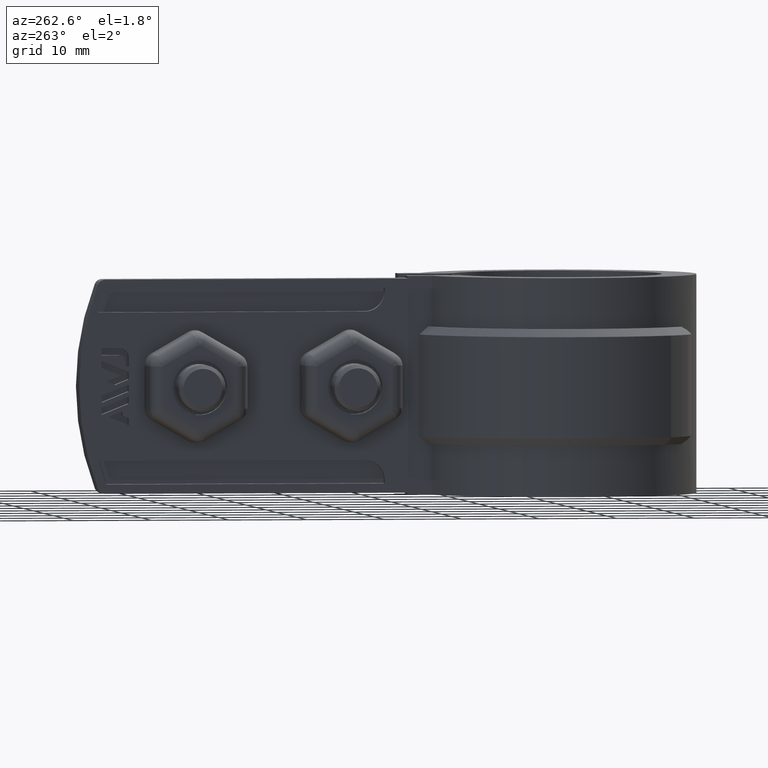
[diagram: clean part render]
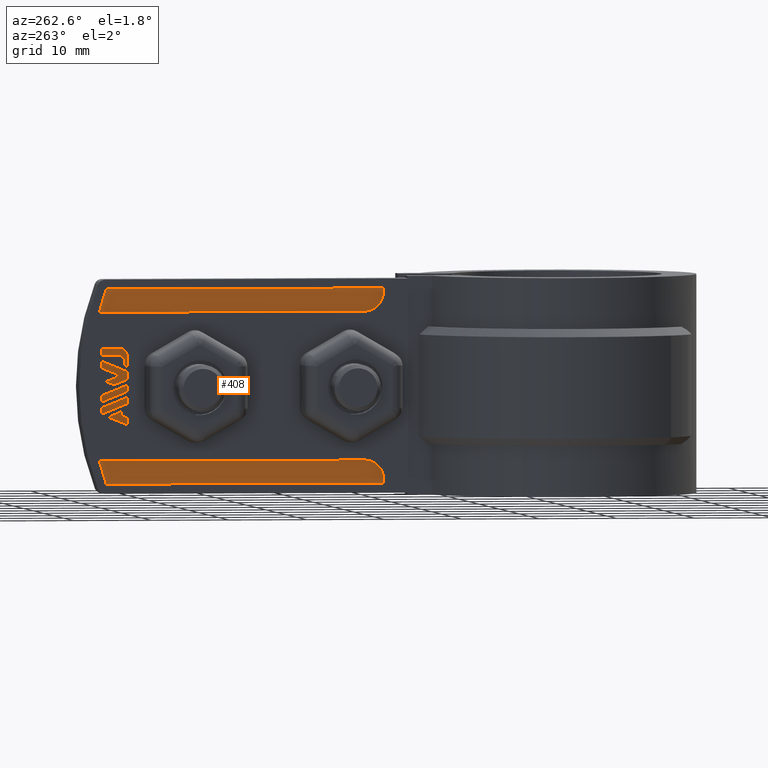
[diagram: same view with one face highlighted and labeled with its STEP entity id]
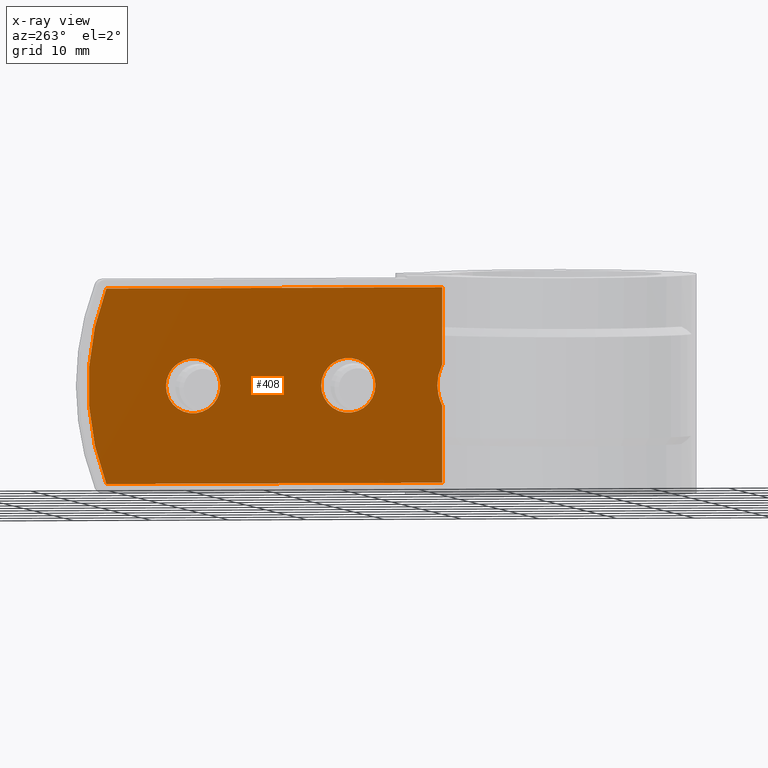
[diagram: x-ray of the same camera — body ghosted, the highlighted face saturated]
A machine part, auxiliary view. The second image highlights one B-rep face of the part: STEP entity #408.
The next image is the same camera in x-ray: the body ghosted, the highlighted face saturated — about 0% of this face is hidden behind the body in this view.
In plain terms, the highlighted planar face has unit normal (1, -0, 0).
Its self-contained STEP definition (entity closure, byte-faithful):
#408 = ADVANCED_FACE( '', ( #798, #799, #800 ), #801, .F. );
#798 = FACE_BOUND( '', #1718, .T. );
#799 = FACE_BOUND( '', #1719, .T. );
#800 = FACE_OUTER_BOUND( '', #1720, .T. );
#801 = PLANE( '', #1721 );
#1718 = EDGE_LOOP( '', ( #3495 ) );
#1719 = EDGE_LOOP( '', ( #3496 ) );
#1720 = EDGE_LOOP( '', ( #3497, #3498, #3499, #3500, #3501, #3502 ) );
#1721 = AXIS2_PLACEMENT_3D( '', #3503, #3504, #3505 );
#3495 = ORIENTED_EDGE( '', *, *, #6311, .F. );
#3496 = ORIENTED_EDGE( '', *, *, #6333, .F. );
#3497 = ORIENTED_EDGE( '', *, *, #6249, .F. );
#3498 = ORIENTED_EDGE( '', *, *, #6302, .F. );
#3499 = ORIENTED_EDGE( '', *, *, #6217, .F. );
#3500 = ORIENTED_EDGE( '', *, *, #6329, .F. );
#3501 = ORIENTED_EDGE( '', *, *, #6321, .T. );
#3502 = ORIENTED_EDGE( '', *, *, #6318, .F. );
#3503 = CARTESIAN_POINT( '', ( -5.10000000000000, 60.9942845476287, 0.000000000000000 ) );
#3504 = DIRECTION( '', ( 1.00000000000000, -6.12303176911189E-017, 0.000000000000000 ) );
#3505 = DIRECTION( '', ( -6.12303176911189E-017, -1.00000000000000, 0.000000000000000 ) );
#6217 = EDGE_CURVE( '', #7142, #7145, #7146, .T. );
#6249 = EDGE_CURVE( '', #7202, #7204, #7205, .T. );
#6302 = EDGE_CURVE( '', #7145, #7202, #7291, .T. );
#6311 = EDGE_CURVE( '', #7302, #7302, #7303, .F. );
#6318 = EDGE_CURVE( '', #7204, #7314, #7315, .T. );
#6321 = EDGE_CURVE( '', #7319, #7314, #7320, .T. );
#6329 = EDGE_CURVE( '', #7319, #7142, #7331, .T. );
#6333 = EDGE_CURVE( '', #7337, #7337, #7338, .F. );
#7142 = VERTEX_POINT( '', #8767 );
#7145 = VERTEX_POINT( '', #8771 );
#7146 = LINE( '', #8772, #8773 );
#7202 = VERTEX_POINT( '', #9060 );
#7204 = VERTEX_POINT( '', #9075 );
#7205 = B_SPLINE_CURVE_WITH_KNOTS( '', 3, ( #9076, #9077, #9078, #9079, #9080, #9081, #9082, #9083, #9084, #9085 ), .UNSPECIFIED., .F., .F., ( 4, 2, 2, 2, 4 ), ( 1.64570318839533E-017, 0.00136972833482959, 0.00273945666965917, 0.00410918500448875, 0.00547891333931833 ), .UNSPECIFIED. );
#7291 = LINE( '', #9471, #9472 );
#7302 = VERTEX_POINT( '', #9524 );
#7303 = CIRCLE( '', #9525, 3.50000000000000 );
#7314 = VERTEX_POINT( '', #9538 );
#7315 = LINE( '', #9539, #9540 );
#7319 = VERTEX_POINT( '', #9545 );
#7320 = LINE( '', #9546, #9547 );
#7331 = CIRCLE( '', #9562, 35.0000000000000 );
#7337 = VERTEX_POINT( '', #9568 );
#7338 = CIRCLE( '', #9569, 3.50000000000000 );
#8767 = CARTESIAN_POINT( '', ( -5.10000000000002, 58.6860266241837, 0.000000000000000 ) );
#8771 = CARTESIAN_POINT( '', ( -5.10000000000000, 15.3831076184236, 0.000000000000000 ) );
#8772 = CARTESIAN_POINT( '', ( -5.10000000000000, 60.9942845476287, 0.000000000000000 ) );
#8773 = VECTOR( '', #12190, 1000.00000000000 );
#9060 = CARTESIAN_POINT( '', ( -5.10000000000000, 15.3831076184236, -9.84439986604453 ) );
#9075 = CARTESIAN_POINT( '', ( -5.10000000000000, 15.3831076184236, -15.1556001339555 ) );
#9076 = CARTESIAN_POINT( '', ( -5.10000000000000, 15.3831076184236, -9.84439986604452 ) );
#9077 = CARTESIAN_POINT( '', ( -5.10000000000000, 15.5894396324821, -10.2588273996214 ) );
#9078 = CARTESIAN_POINT( '', ( -5.10000000000001, 15.7457538054947, -10.6884978307923 ) );
#9079 = CARTESIAN_POINT( '', ( -5.10000000000001, 15.9602605933104, -11.5777411605792 ) );
#9080 = CARTESIAN_POINT( '', ( -5.09999999999998, 16.0173587787112, -12.0419649333648 ) );
#9081 = CARTESIAN_POINT( '', ( -5.09999999999998, 16.0176066976480, -12.9549874060008 ) );
#9082 = CARTESIAN_POINT( '', ( -5.10000000000000, 15.9625813983814, -13.4102325084198 ) );
#9083 = CARTESIAN_POINT( '', ( -5.10000000000000, 15.7468416891248, -14.3093600833802 ) );
#9084 = CARTESIAN_POINT( '', ( -5.09999999999942, 15.5894183484999, -14.7412153502558 ) );
#9085 = CARTESIAN_POINT( '', ( -5.09999999999942, 15.3831076184237, -15.1556001339555 ) );
#9471 = CARTESIAN_POINT( '', ( -5.10000000000000, 15.3831076184236, 0.000000000000000 ) );
#9472 = VECTOR( '', #12269, 1000.00000000000 );
#9524 = CARTESIAN_POINT( '', ( -5.09999999999999, 30.9942845476287, -12.5000000000000 ) );
#9525 = AXIS2_PLACEMENT_3D( '', #12277, #12278, #12279 );
#9538 = CARTESIAN_POINT( '', ( -5.10000000000000, 15.3831076184236, -25.0000000000000 ) );
#9539 = CARTESIAN_POINT( '', ( -5.10000000000000, 15.3831076184236, 0.000000000000000 ) );
#9540 = VECTOR( '', #12294, 1000.00000000000 );
#9545 = CARTESIAN_POINT( '', ( -5.10000000000002, 58.6860266241838, -25.0000000000000 ) );
#9546 = CARTESIAN_POINT( '', ( -5.10000000000000, 60.9942845476287, -25.0000000000000 ) );
#9547 = VECTOR( '', #12299, 1000.00000000000 );
#9562 = AXIS2_PLACEMENT_3D( '', #12313, #12314, #12315 );
#9568 = CARTESIAN_POINT( '', ( -5.09999999999999, 50.9942845476287, -12.5000000000000 ) );
#9569 = AXIS2_PLACEMENT_3D( '', #12325, #12326, #12327 );
#12190 = DIRECTION( '', ( -6.12303176911189E-017, -1.00000000000000, 0.000000000000000 ) );
#12269 = DIRECTION( '', ( 0.000000000000000, 0.000000000000000, -1.00000000000000 ) );
#12277 = CARTESIAN_POINT( '', ( -5.09999999999999, 27.4942845476287, -12.5000000000000 ) );
#12278 = DIRECTION( '', ( 1.00000000000000, -6.12303176911189E-017, 0.000000000000000 ) );
#12279 = DIRECTION( '', ( 6.12303176911189E-017, 1.00000000000000, 0.000000000000000 ) );
#12294 = DIRECTION( '', ( 0.000000000000000, 0.000000000000000, -1.00000000000000 ) );
#12299 = DIRECTION( '', ( -6.12303176911189E-017, -1.00000000000000, 0.000000000000000 ) );
#12313 = CARTESIAN_POINT( '', ( -5.09999999999999, 25.9942845476287, -12.5000000000000 ) );
#12314 = DIRECTION( '', ( 1.00000000000000, -6.12303176911189E-017, 0.000000000000000 ) );
#12315 = DIRECTION( '', ( 6.12303176911189E-017, 1.00000000000000, 0.000000000000000 ) );
#12325 = CARTESIAN_POINT( '', ( -5.09999999999999, 47.4942845476287, -12.5000000000000 ) );
#12326 = DIRECTION( '', ( 1.00000000000000, -6.12303176911189E-017, 0.000000000000000 ) );
#12327 = DIRECTION( '', ( 6.12303176911189E-017, 1.00000000000000, 0.000000000000000 ) );